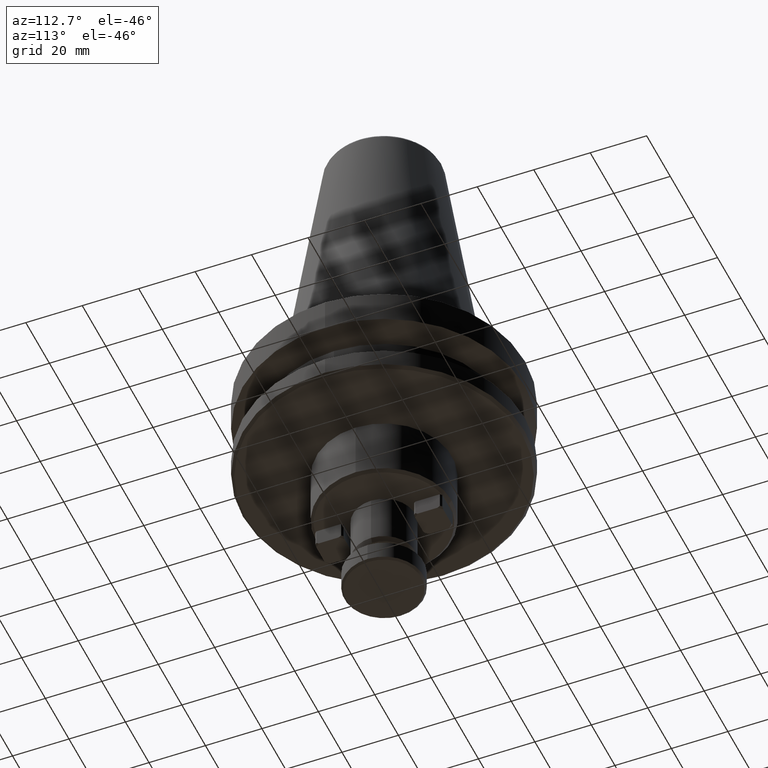
[diagram: clean part render]
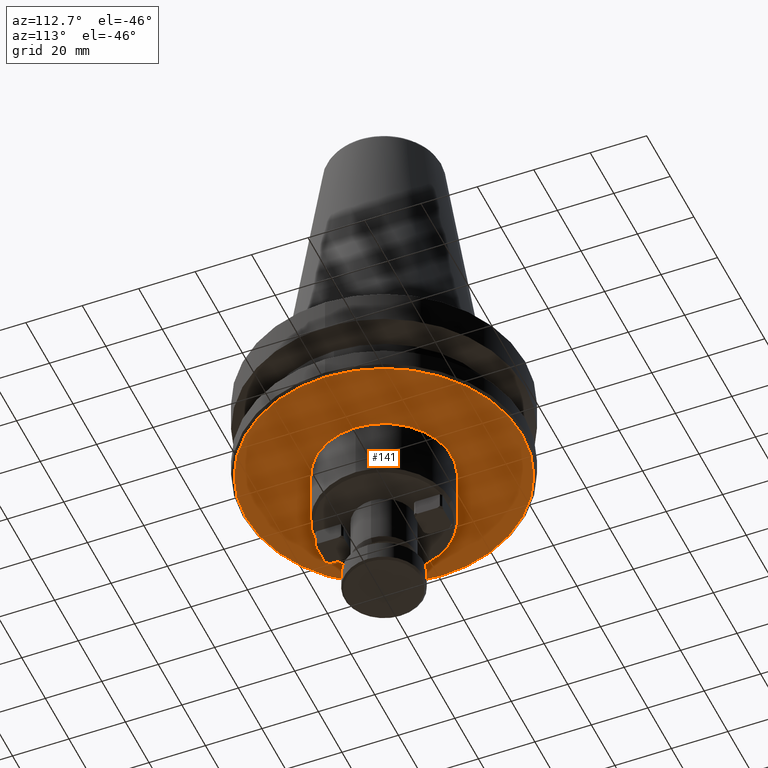
[diagram: same view with one face highlighted and labeled with its STEP entity id]
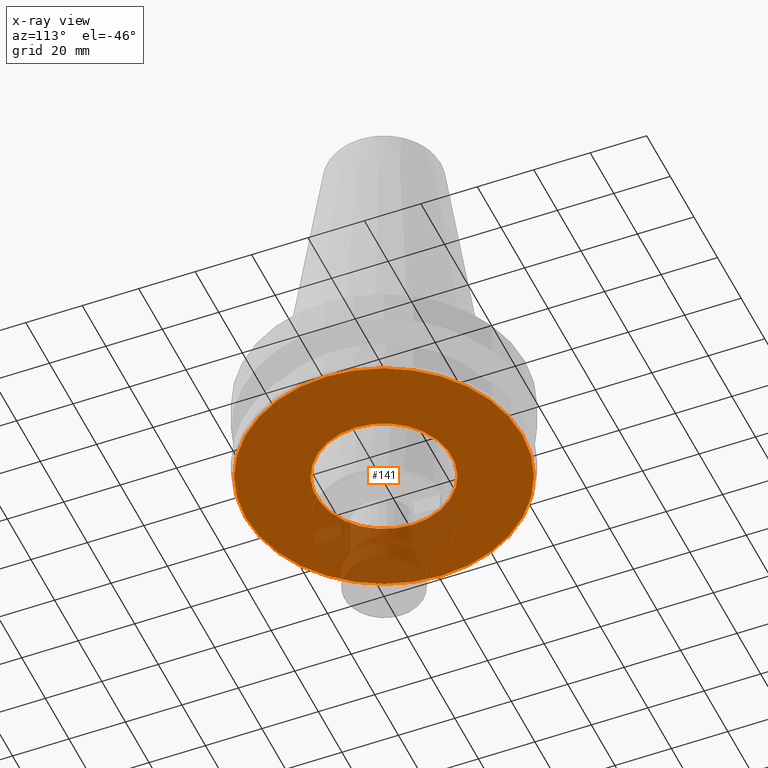
[diagram: x-ray of the same camera — body ghosted, the highlighted face saturated]
A machine part, auxiliary view. The second image highlights one B-rep face of the part: STEP entity #141.
The next image is the same camera in x-ray: the body ghosted, the highlighted face saturated — about 20% of this face is hidden behind the body in this view.
In plain terms, the highlighted planar face has unit normal (0, 0, 1).
Its self-contained STEP definition (entity closure, byte-faithful):
#135 = CIRCLE ( 'NONE', #1909, 49.00000000000000000 ) ;
#141 = ADVANCED_FACE ( 'NONE', ( #2009, #363 ), #2037, .F. ) ;
#254 = DIRECTION ( 'NONE',  ( 1.000000000000000000, 0.0000000000000000000, 0.0000000000000000000 ) ) ;
#255 = DIRECTION ( 'NONE',  ( 0.0000000000000000000, -0.0000000000000000000, 1.000000000000000000 ) ) ;
#256 = CARTESIAN_POINT ( 'NONE',  ( 0.0000000000000000000, 0.0000000000000000000, -38.00000000000002100 ) ) ;
#265 = CIRCLE ( 'NONE', #1402, 49.00000000000000000 ) ;
#363 = FACE_BOUND ( 'NONE', #1978, .T. ) ;
#470 = VERTEX_POINT ( 'NONE', #1999 ) ;
#494 = CARTESIAN_POINT ( 'NONE',  ( -49.00000000000000000, 6.062001655779398500E-015, -38.00000000000002100 ) ) ;
#538 = VERTEX_POINT ( 'NONE', #2599 ) ;
#644 = EDGE_LOOP ( 'NONE', ( #2065, #1755 ) ) ;
#724 = AXIS2_PLACEMENT_3D ( 'NONE', #1949, #1888, #1883 ) ;
#725 = EDGE_CURVE ( 'NONE', #470, #538, #1605, .T. ) ;
#809 = DIRECTION ( 'NONE',  ( 1.000000000000000000, 0.0000000000000000000, 0.0000000000000000000 ) ) ;
#812 = DIRECTION ( 'NONE',  ( 0.0000000000000000000, -0.0000000000000000000, 1.000000000000000000 ) ) ;
#815 = CARTESIAN_POINT ( 'NONE',  ( 0.0000000000000000000, 0.0000000000000000000, -38.00000000000002100 ) ) ;
#822 = VERTEX_POINT ( 'NONE', #1828 ) ;
#842 = DIRECTION ( 'NONE',  ( 1.000000000000000000, 0.0000000000000000000, 0.0000000000000000000 ) ) ;
#846 = DIRECTION ( 'NONE',  ( -0.0000000000000000000, -0.0000000000000000000, -1.000000000000000000 ) ) ;
#849 = CARTESIAN_POINT ( 'NONE',  ( 0.0000000000000000000, 0.0000000000000000000, -37.99999999999999300 ) ) ;
#945 = CIRCLE ( 'NONE', #1800, 24.00000000000000000 ) ;
#1335 = ORIENTED_EDGE ( 'NONE', *, *, #725, .F. ) ;
#1402 = AXIS2_PLACEMENT_3D ( 'NONE', #256, #255, #254 ) ;
#1489 = EDGE_CURVE ( 'NONE', #538, #470, #945, .T. ) ;
#1540 = EDGE_CURVE ( 'NONE', #2709, #822, #135, .T. ) ;
#1605 = CIRCLE ( 'NONE', #724, 24.00000000000000000 ) ;
#1755 = ORIENTED_EDGE ( 'NONE', *, *, #1540, .F. ) ;
#1800 = AXIS2_PLACEMENT_3D ( 'NONE', #849, #846, #842 ) ;
#1828 = CARTESIAN_POINT ( 'NONE',  ( 49.00000000000000000, 0.0000000000000000000, -38.00000000000002100 ) ) ;
#1844 = DIRECTION ( 'NONE',  ( 0.0000000000000000000, 0.0000000000000000000, 1.000000000000000000 ) ) ;
#1883 = DIRECTION ( 'NONE',  ( 1.000000000000000000, 0.0000000000000000000, 0.0000000000000000000 ) ) ;
#1888 = DIRECTION ( 'NONE',  ( -0.0000000000000000000, -0.0000000000000000000, -1.000000000000000000 ) ) ;
#1909 = AXIS2_PLACEMENT_3D ( 'NONE', #815, #812, #809 ) ;
#1949 = CARTESIAN_POINT ( 'NONE',  ( 0.0000000000000000000, 0.0000000000000000000, -37.99999999999999300 ) ) ;
#1971 = EDGE_CURVE ( 'NONE', #822, #2709, #265, .T. ) ;
#1978 = EDGE_LOOP ( 'NONE', ( #2281, #1335 ) ) ;
#1999 = CARTESIAN_POINT ( 'NONE',  ( -24.00000000000000000, 2.939152317953647900E-015, -37.99999999999999300 ) ) ;
#2009 = FACE_OUTER_BOUND ( 'NONE', #644, .T. ) ;
#2037 = PLANE ( 'NONE',  #2669 ) ;
#2065 = ORIENTED_EDGE ( 'NONE', *, *, #1971, .F. ) ;
#2207 = CARTESIAN_POINT ( 'NONE',  ( 0.0000000000000000000, 49.00000000000000000, -38.00000000000000700 ) ) ;
#2281 = ORIENTED_EDGE ( 'NONE', *, *, #1489, .F. ) ;
#2481 = DIRECTION ( 'NONE',  ( 1.000000000000000000, 0.0000000000000000000, -0.0000000000000000000 ) ) ;
#2599 = CARTESIAN_POINT ( 'NONE',  ( 24.00000000000000000, 0.0000000000000000000, -37.99999999999999300 ) ) ;
#2669 = AXIS2_PLACEMENT_3D ( 'NONE', #2207, #1844, #2481 ) ;
#2709 = VERTEX_POINT ( 'NONE', #494 ) ;